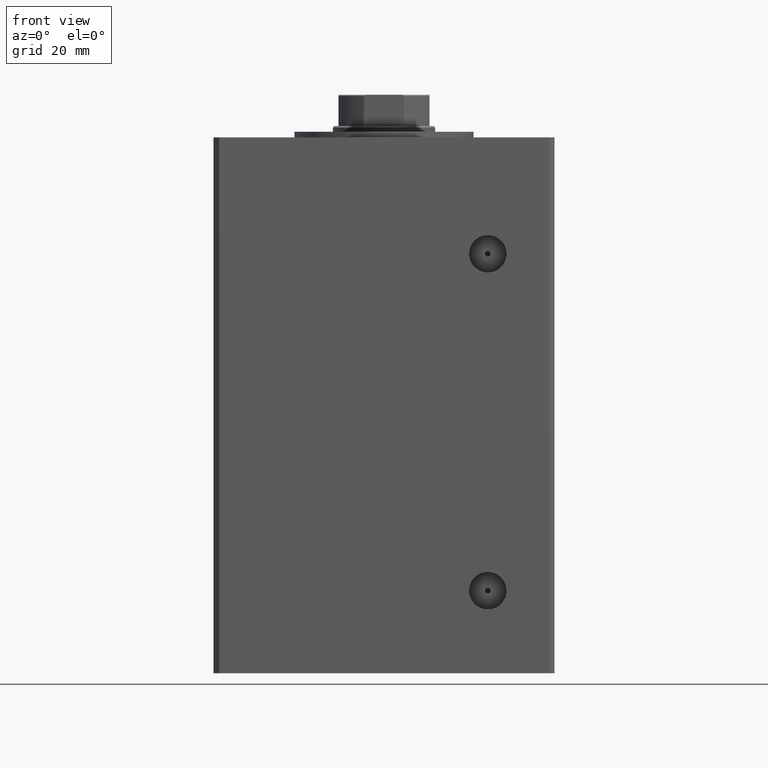
[diagram: clean part render]
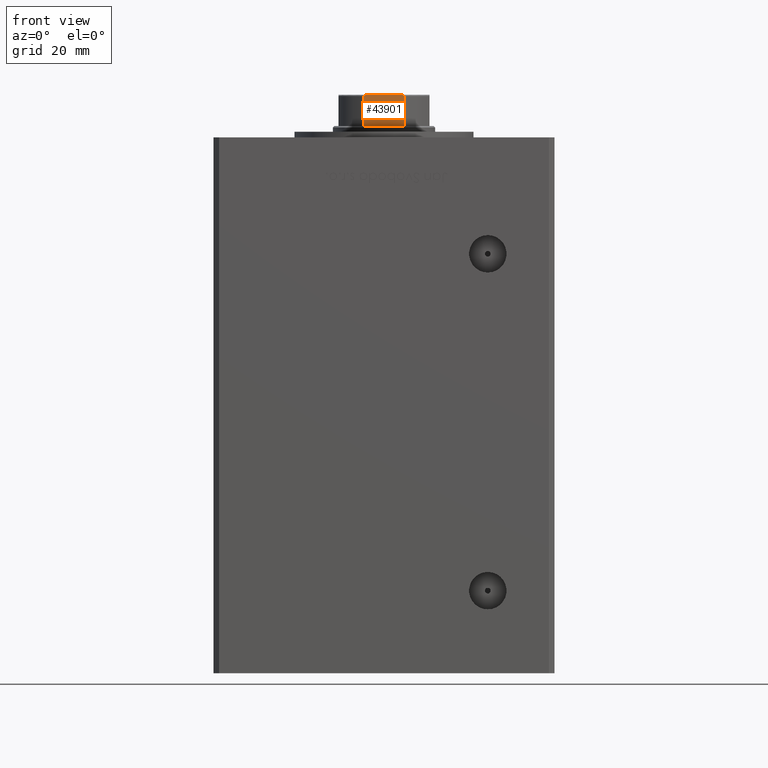
[diagram: same view with one face highlighted and labeled with its STEP entity id]
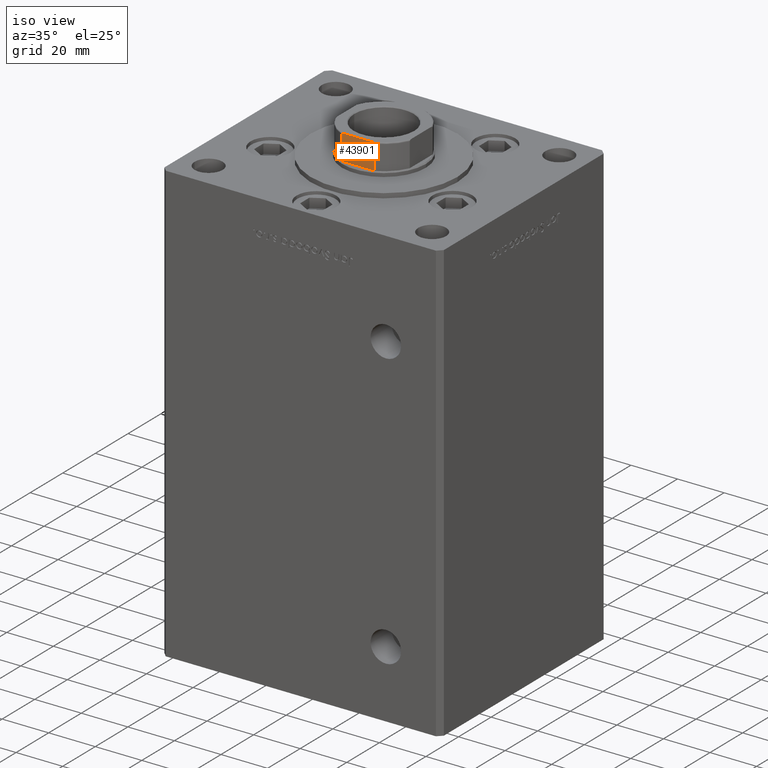
[diagram: same view with one face highlighted and labeled with its STEP entity id]
A machine part, front view. The second image highlights one B-rep face of the part: STEP entity #43901.
A second angle (iso view) of the same face is appended — the face is thin or edge-on in the first view.
In plain terms, the highlighted planar face has unit normal (-0, 1, 0).
Its self-contained STEP definition (entity closure, byte-faithful):
#709 = CARTESIAN_POINT ( 'NONE',  ( -15.99999999999999645, -16.00000000000000355, 169.2500000000000000 ) ) ;
#1015 = DIRECTION ( 'NONE',  ( -0.000000000000000000, -0.000000000000000000, 1.000000000000000000 ) ) ;
#1776 = CARTESIAN_POINT ( 'NONE',  ( -15.99999999999999645, -16.00000000000000355, 158.2500000000000000 ) ) ;
#1868 = VERTEX_POINT ( 'NONE', #47162 ) ;
#3170 = B_SPLINE_CURVE_WITH_KNOTS ( 'NONE', 3,
 ( #10654, #10131, #26720, #26199, #50442, #14353, #6699, #22767, #52010, #39375 ),
 .UNSPECIFIED., .F., .F.,
 ( 4, 2, 2, 2, 4 ),
 ( 0.000000000000000000, 0.0007561879621635831435, 0.001134281943245383280, 0.001323328933786264592, 0.001512375924327145904 ),
 .UNSPECIFIED. ) ;
#4995 = DIRECTION ( 'NONE',  ( -1.084202172485504557E-16, 1.000000000000000000, 0.000000000000000000 ) ) ;
#5872 = ORIENTED_EDGE ( 'NONE', *, *, #21671, .T. ) ;
#5999 = CARTESIAN_POINT ( 'NONE',  ( 6.623467753754345821, -15.99999999999999645, 169.1410978819201318 ) ) ;
#6281 = ORIENTED_EDGE ( 'NONE', *, *, #16380, .T. ) ;
#6699 = CARTESIAN_POINT ( 'NONE',  ( -6.967626683430007795, -16.00000000000000355, 168.9712986014228591 ) ) ;
#6782 = AXIS2_PLACEMENT_3D ( 'NONE', #41626, #4995, #17378 ) ;
#8143 = CARTESIAN_POINT ( 'NONE',  ( -7.088723439378916247, -16.00000000000000000, -0.001000000000001000089 ) ) ;
#8639 = EDGE_CURVE ( 'NONE', #29540, #8932, #28911, .T. ) ;
#8932 = VERTEX_POINT ( 'NONE', #51261 ) ;
#10131 = CARTESIAN_POINT ( 'NONE',  ( -5.999698100839998105, -16.00000000000000711, 169.2499999999999432 ) ) ;
#10209 = LINE ( 'NONE', #1776, #38403 ) ;
#10654 = CARTESIAN_POINT ( 'NONE',  ( -5.744562646538029504, -16.00000000000000355, 169.2500000000000000 ) ) ;
#11092 = EDGE_CURVE ( 'NONE', #30105, #1868, #37180, .T. ) ;
#11745 = EDGE_CURVE ( 'NONE', #29540, #50079, #3170, .T. ) ;
#12363 = CARTESIAN_POINT ( 'NONE',  ( 7.088723439378916247, -16.00000000000000000, 168.7500000000000000 ) ) ;
#12576 = DIRECTION ( 'NONE',  ( 1.000000000000000000, 1.084202172485504434E-16, 0.000000000000000000 ) ) ;
#14233 = VERTEX_POINT ( 'NONE', #27516 ) ;
#14353 = CARTESIAN_POINT ( 'NONE',  ( -6.914158745692620123, -15.99999999999999645, 169.0081288012991081 ) ) ;
#16380 = EDGE_CURVE ( 'NONE', #1868, #8932, #34953, .T. ) ;
#16722 = CARTESIAN_POINT ( 'NONE',  ( -5.744562646538029504, -16.00000000000000355, 169.2500000000000000 ) ) ;
#16834 = LINE ( 'NONE', #8143, #38653 ) ;
#17378 = DIRECTION ( 'NONE',  ( -1.000000000000000000, -1.084202172485504557E-16, 0.000000000000000000 ) ) ;
#18210 = ORIENTED_EDGE ( 'NONE', *, *, #36244, .F. ) ;
#18790 = ORIENTED_EDGE ( 'NONE', *, *, #8639, .F. ) ;
#19778 = CARTESIAN_POINT ( 'NONE',  ( 7.088723439378916247, -16.00000000000000000, 158.2500000000000284 ) ) ;
#20032 = CARTESIAN_POINT ( 'NONE',  ( -7.088723439378916247, -16.00000000000000000, 168.7500000000000000 ) ) ;
#20267 = CARTESIAN_POINT ( 'NONE',  ( 6.968475375953126161, -16.00000000000000000, 168.9705009019615147 ) ) ;
#21048 = CARTESIAN_POINT ( 'NONE',  ( 5.744562646538024175, -16.00000000000000355, 169.2500000000000000 ) ) ;
#21099 = DIRECTION ( 'NONE',  ( -0.000000000000000000, -0.000000000000000000, 1.000000000000000000 ) ) ;
#21671 = EDGE_CURVE ( 'NONE', #14233, #30105, #10209, .T. ) ;
#22767 = CARTESIAN_POINT ( 'NONE',  ( -7.055793701721071010, -16.00000000000000000, 168.8756279161197540 ) ) ;
#26199 = CARTESIAN_POINT ( 'NONE',  ( -6.620608993398003683, -16.00000000000000000, 169.1419184437072545 ) ) ;
#26720 = CARTESIAN_POINT ( 'NONE',  ( -6.251780714621276935, -16.00000000000000355, 169.2305079891187347 ) ) ;
#27221 = VECTOR ( 'NONE', #12576, 1000.000000000000000 ) ;
#27516 = CARTESIAN_POINT ( 'NONE',  ( -7.088723439378916247, -16.00000000000000000, 158.2500000000000284 ) ) ;
#28911 = LINE ( 'NONE', #709, #27221 ) ;
#29540 = VERTEX_POINT ( 'NONE', #16722 ) ;
#29726 = DIRECTION ( 'NONE',  ( 1.000000000000000000, 1.084202172485504434E-16, 0.000000000000000000 ) ) ;
#30105 = VERTEX_POINT ( 'NONE', #19778 ) ;
#30300 = CARTESIAN_POINT ( 'NONE',  ( 7.088723439378916247, -16.00000000000000000, -0.001000000000001000089 ) ) ;
#30949 = ORIENTED_EDGE ( 'NONE', *, *, #11745, .T. ) ;
#32353 = VECTOR ( 'NONE', #21099, 1000.000000000000000 ) ;
#32396 = CARTESIAN_POINT ( 'NONE',  ( 6.914772706552264836, -16.00000000000000355, 169.0076711345670901 ) ) ;
#34953 = B_SPLINE_CURVE_WITH_KNOTS ( 'NONE', 3,
 ( #12363, #51893, #40302, #20267, #32396, #44506, #5999, #41084, #37129, #21048 ),
 .UNSPECIFIED., .F., .F.,
 ( 4, 2, 2, 2, 4 ),
 ( 0.000000000000000000, 0.0001928955851489656066, 0.0003857911702979312132, 0.0007715823405958216604, 0.001543164681191583039 ),
 .UNSPECIFIED. ) ;
#36244 = EDGE_CURVE ( 'NONE', #14233, #50079, #16834, .T. ) ;
#37129 = CARTESIAN_POINT ( 'NONE',  ( 5.999773414835120278, -15.99999999999999645, 169.2499999999999432 ) ) ;
#37180 = LINE ( 'NONE', #30300, #32353 ) ;
#38403 = VECTOR ( 'NONE', #29726, 1000.000000000000000 ) ;
#38653 = VECTOR ( 'NONE', #1015, 1000.000000000000000 ) ;
#39375 = CARTESIAN_POINT ( 'NONE',  ( -7.088723439378916247, -16.00000000000000000, 168.7500000000000000 ) ) ;
#39438 = ORIENTED_EDGE ( 'NONE', *, *, #11092, .T. ) ;
#40302 = CARTESIAN_POINT ( 'NONE',  ( 7.055665994487714698, -16.00000000000000000, 168.8756422470904397 ) ) ;
#41084 = CARTESIAN_POINT ( 'NONE',  ( 6.252433022027807930, -16.00000000000000000, 169.2306157152108312 ) ) ;
#41626 = CARTESIAN_POINT ( 'NONE',  ( -15.99999999999999645, -16.00000000000000355, 169.2500000000000000 ) ) ;
#43901 = ADVANCED_FACE ( 'NONE', ( #45053 ), #44790, .F. ) ;
#44506 = CARTESIAN_POINT ( 'NONE',  ( 6.746962372739930380, -16.00000000000000000, 169.1011068297690088 ) ) ;
#44790 = PLANE ( 'NONE',  #6782 ) ;
#45053 = FACE_OUTER_BOUND ( 'NONE', #48539, .T. ) ;
#47162 = CARTESIAN_POINT ( 'NONE',  ( 7.088723439378916247, -16.00000000000000000, 168.7500000000000000 ) ) ;
#48539 = EDGE_LOOP ( 'NONE', ( #18790, #30949, #18210, #5872, #39438, #6281 ) ) ;
#50079 = VERTEX_POINT ( 'NONE', #20032 ) ;
#50442 = CARTESIAN_POINT ( 'NONE',  ( -6.744478600285193970, -16.00000000000000711, 169.1022542963853255 ) ) ;
#51261 = CARTESIAN_POINT ( 'NONE',  ( 5.744562646538024175, -16.00000000000000355, 169.2500000000000000 ) ) ;
#51893 = CARTESIAN_POINT ( 'NONE',  ( 7.088723439378916247, -16.00000000000000000, 168.8153596029795551 ) ) ;
#52010 = CARTESIAN_POINT ( 'NONE',  ( -7.088723439378911806, -16.00000000000000000, 168.8155697653146206 ) ) ;